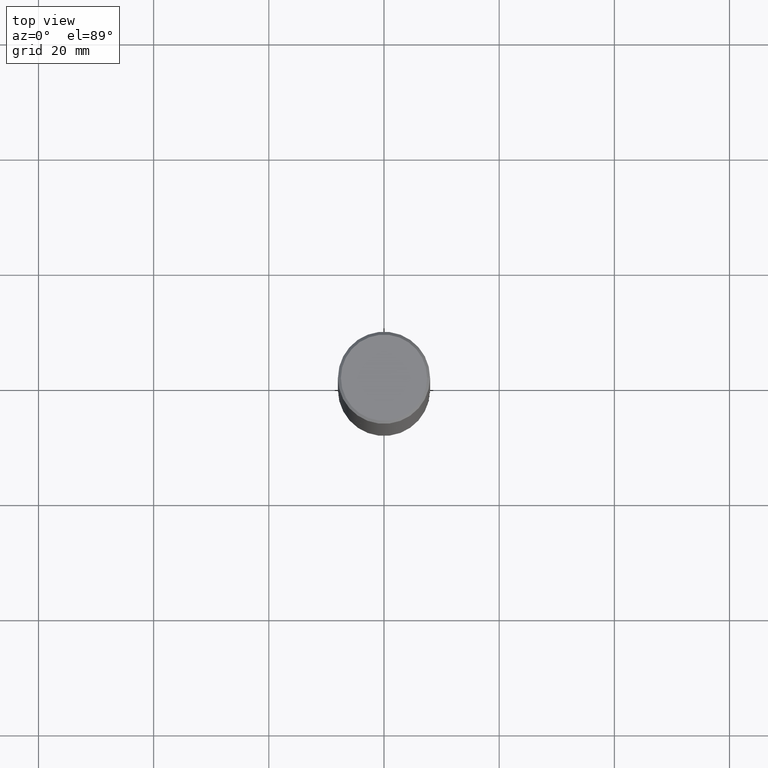
[diagram: clean part render]
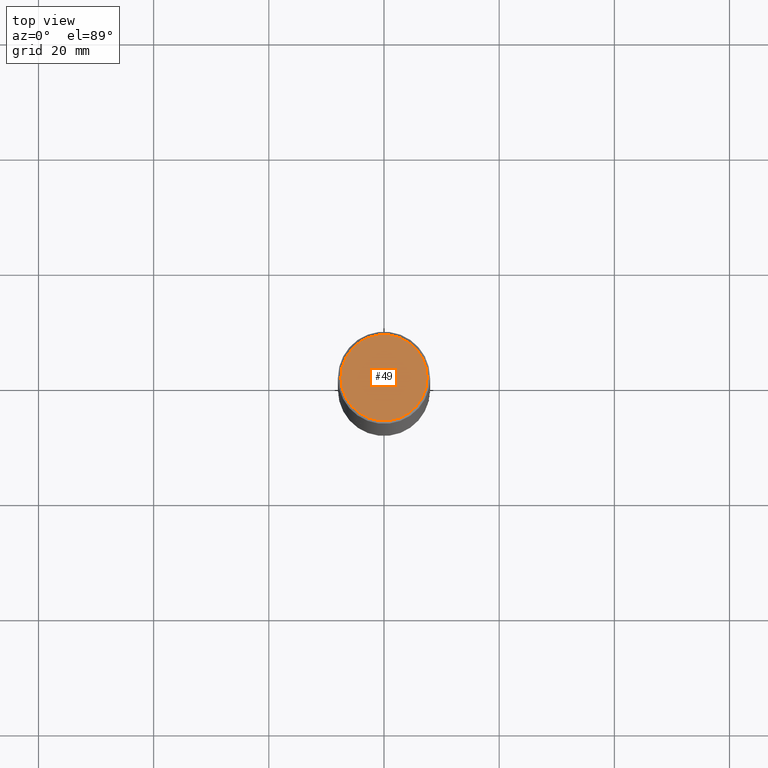
[diagram: same view with one face highlighted and labeled with its STEP entity id]
A machine part, top view. The second image highlights one B-rep face of the part: STEP entity #49.
In plain terms, the highlighted planar face has unit normal (0, -0, -1).
Its self-contained STEP definition (entity closure, byte-faithful):
#37 = CARTESIAN_POINT ( 'NONE',  ( 0.2949499999999998789, -2.127023677808859680E-15, 2.561107494061710474E-17 ) ) ;
#49 = ADVANCED_FACE ( 'NONE', ( #237 ), #367, .F. ) ;
#77 = CARTESIAN_POINT ( 'NONE',  ( 2.059624841783563274E-15, 0.2949499999999998789, -1.017006883421484104E-15 ) ) ;
#80 = CIRCLE ( 'NONE', #403, 0.2949499999999998789 ) ;
#111 = DIRECTION ( 'NONE',  ( 2.438088387897960049E-29, -3.491481338843145188E-15, -1.000000000000000000 ) ) ;
#122 = CARTESIAN_POINT ( 'NONE',  ( -6.263108486011318528E-46, 8.942059022282683748E-32, 2.561107494060246767E-17 ) ) ;
#159 = ORIENTED_EDGE ( 'NONE', *, *, #395, .T. ) ;
#160 = CIRCLE ( 'NONE', #253, 0.2949499999999998789 ) ;
#167 = VERTEX_POINT ( 'NONE', #293 ) ;
#180 = DIRECTION ( 'NONE',  ( -2.445468806185136597E-29, 3.491481338843145583E-15, 1.000000000000000000 ) ) ;
#237 = FACE_OUTER_BOUND ( 'NONE', #385, .T. ) ;
#241 = CARTESIAN_POINT ( 'NONE',  ( -6.263108486011318528E-46, 8.942059022282683748E-32, 2.561107494060246767E-17 ) ) ;
#242 = EDGE_CURVE ( 'NONE', #167, #294, #160, .T. ) ;
#252 = DIRECTION ( 'NONE',  ( -2.445468806185136597E-29, 3.491481338843145583E-15, 1.000000000000000000 ) ) ;
#253 = AXIS2_PLACEMENT_3D ( 'NONE', #122, #252, #276 ) ;
#276 = DIRECTION ( 'NONE',  ( 1.000000000000000000, -6.982962677686267499E-15, 4.876696176320539706E-29 ) ) ;
#293 = CARTESIAN_POINT ( 'NONE',  ( -0.2949499999999998789, 2.094539655171995318E-15, 2.561107494058794462E-17 ) ) ;
#294 = VERTEX_POINT ( 'NONE', #37 ) ;
#332 = ORIENTED_EDGE ( 'NONE', *, *, #242, .T. ) ;
#336 = DIRECTION ( 'NONE',  ( -1.000000000000000000, 6.982962677686265922E-15, -4.876176775795935793E-29 ) ) ;
#367 = PLANE ( 'NONE',  #415 ) ;
#377 = DIRECTION ( 'NONE',  ( 1.000000000000000000, -6.982962677686267499E-15, 4.876696176320539706E-29 ) ) ;
#385 = EDGE_LOOP ( 'NONE', ( #332, #159 ) ) ;
#395 = EDGE_CURVE ( 'NONE', #294, #167, #80, .T. ) ;
#403 = AXIS2_PLACEMENT_3D ( 'NONE', #241, #180, #377 ) ;
#415 = AXIS2_PLACEMENT_3D ( 'NONE', #77, #111, #336 ) ;